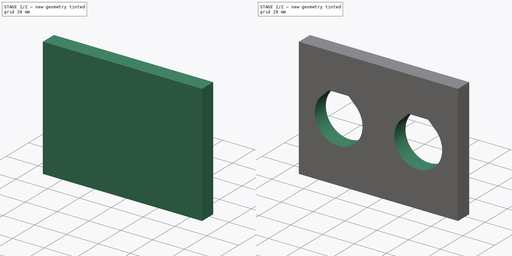
[diagram: build sequence overview — one tinted view per stage of 2, left to right]
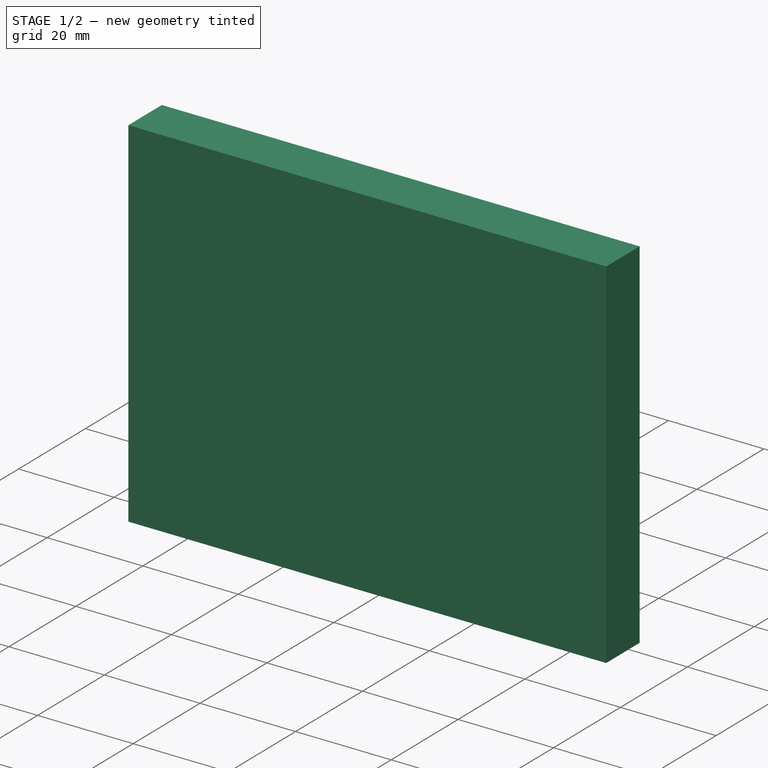
[diagram: stage 1 of 2 — iso view after this stage's code; geometry added in this stage tinted green]
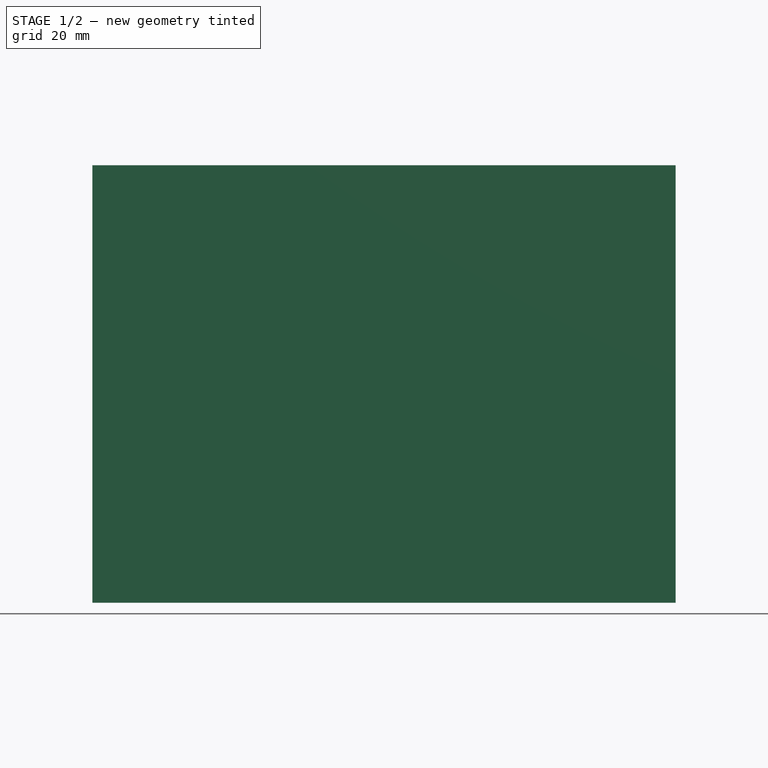
[diagram: stage 1 of 2 — front view after this stage's code; geometry added in this stage tinted green]
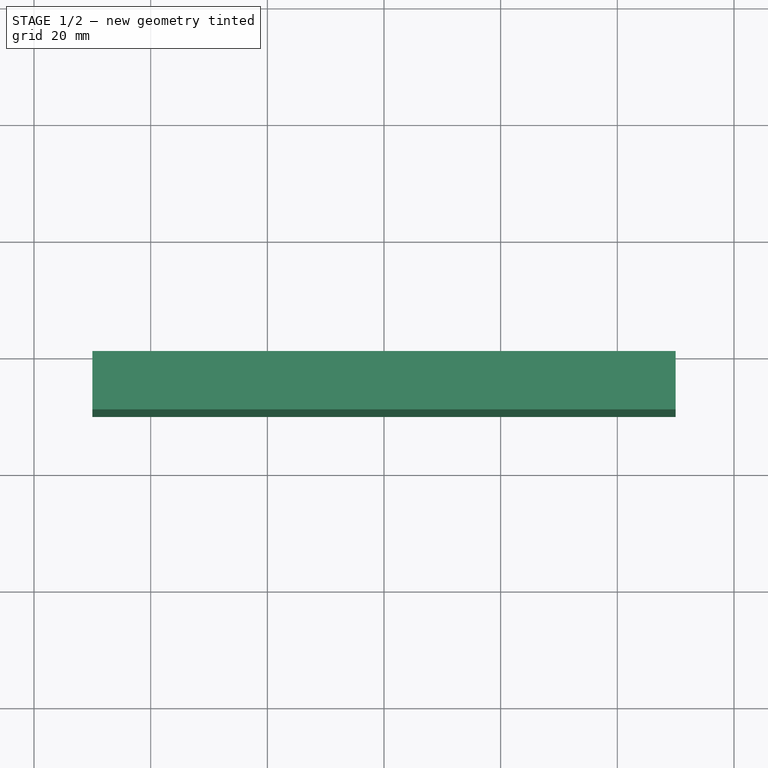
[diagram: stage 1 of 2 — top view after this stage's code; geometry added in this stage tinted green]
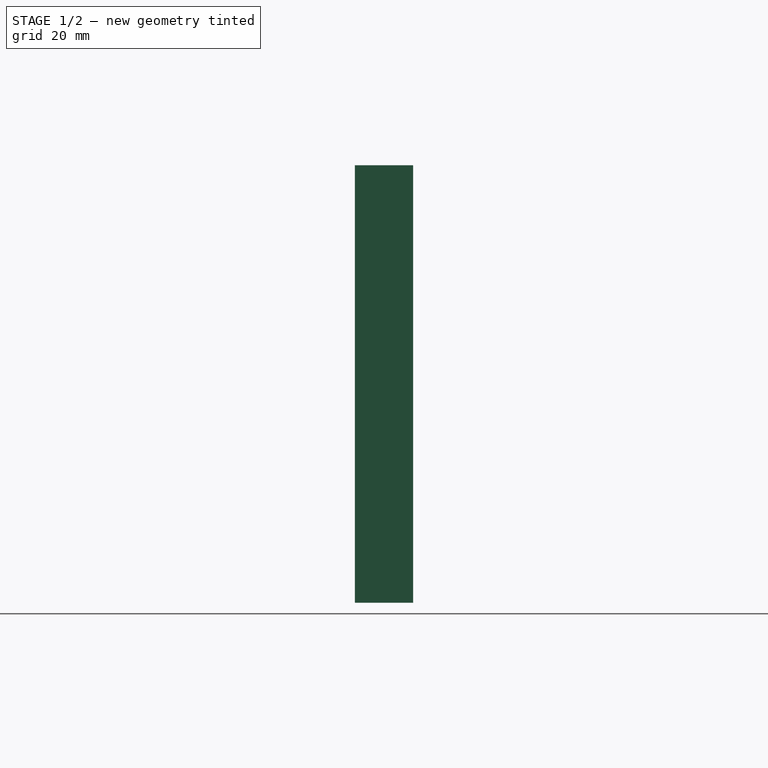
[diagram: stage 1 of 2 — right view after this stage's code; geometry added in this stage tinted green]
FCSTD DOCUMENT  (FreeCAD 0.16R6707 (Git))
Label: Taladros_RepRap
License: CreativeCommons Attribution-ShareAlike
LicenseURL: http://creativecommons.org/licenses/by-sa/4.0/
objects: Sketcher::SketchObject×2, PartDesign::Pad×1, PartDesign::Pocket×1
note: 6 computed .brp shape members not serialized (recipe doc carries the construction recipe); baked Part::Feature solids carry a one-line shape summary decoded from their .brp

FEATURE [Sketcher::SketchObject] Sketch
  Placement = pos=(0,0,0) rot=(-1,0,0;4.71239rad)
  sketch-geometry (4):
    g0: LineSegment StartX=-50 StartY=37.5 StartZ=0 EndX=50 EndY=37.5 EndZ=0
    g1: LineSegment StartX=50 StartY=37.5 StartZ=0 EndX=50 EndY=-37.5 EndZ=0
    g2: LineSegment StartX=50 StartY=-37.5 StartZ=0 EndX=-50 EndY=-37.5 EndZ=0
    g3: LineSegment StartX=-50 StartY=-37.5 StartZ=0 EndX=-50 EndY=37.5 EndZ=0
  constraints (12):
    c: Coincident(g0,g1)
    c: Coincident(g1,g2)
    c: Coincident(g2,g3)
    c: Coincident(g3,g0)
    c: Horizontal(g0)
    c: Horizontal(g2)
    c: Vertical(g1)
    c: Vertical(g3)
    c: DistanceX(g0,g0) = 100
    c: DistanceY(g1,g1) = 75
    c: Symmetric(g0,g2,g-1)
    c: Symmetric(g0,g0,g-2)
FEATURE [PartDesign::Pad] Pad  label="Base"
  Length = 10
  Length2 = 100
  Placement = pos=(0,0,0) rot=(-1,0,0;4.71239rad)
  Sketch = -> Sketch
  Type = 0
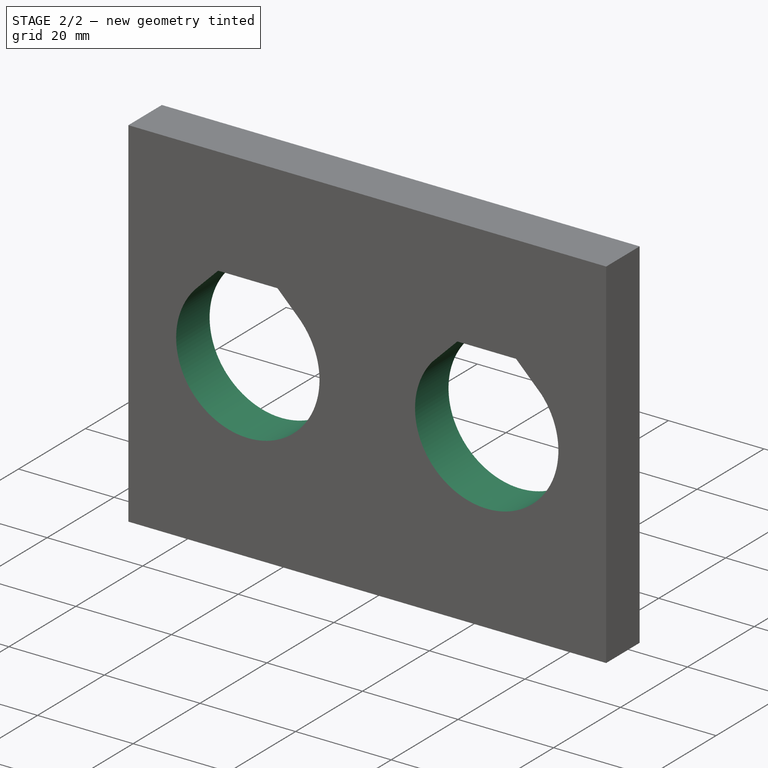
[diagram: stage 2 of 2 — iso view after this stage's code; geometry added in this stage tinted green]
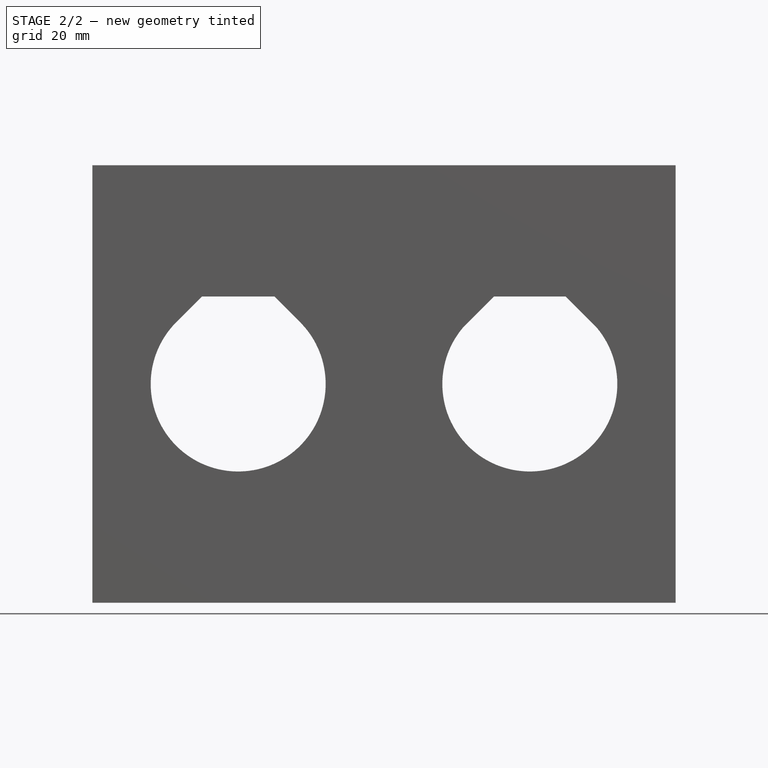
[diagram: stage 2 of 2 — front view after this stage's code; geometry added in this stage tinted green]
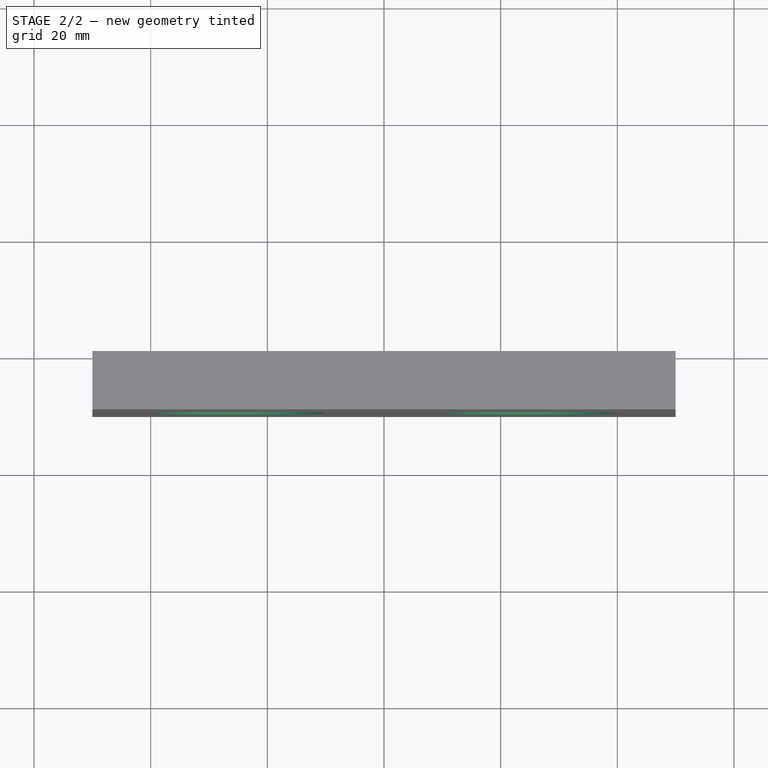
[diagram: stage 2 of 2 — top view after this stage's code; geometry added in this stage tinted green]
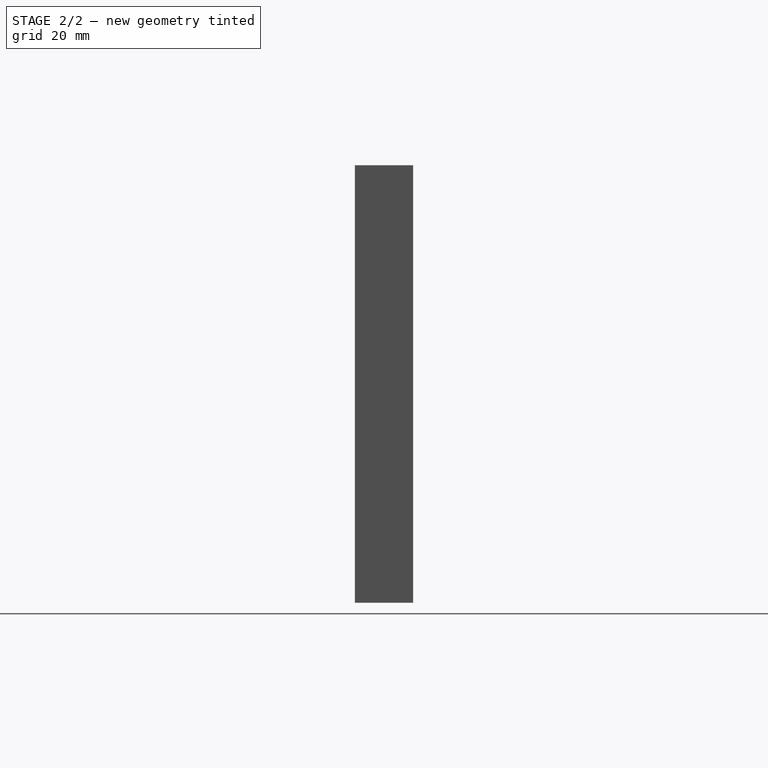
[diagram: stage 2 of 2 — right view after this stage's code; geometry added in this stage tinted green]
FEATURE [Sketcher::SketchObject] Sketch001  label="BCT_Taladros_RepRap"
  Placement = pos=(0,-10,0) rot=(1,0,0;1.5708rad)
  Support = -> Pad [Face6]
  sketch-geometry (10):
    g0: ArcOfCircle CenterX=-25 CenterY=0 CenterZ=0 NormalX=0 NormalY=0 NormalZ=1 Radius=15 StartAngle=2.3562 EndAngle=7.06858
    g1: ArcOfCircle CenterX=25 CenterY=0 CenterZ=0 NormalX=0 NormalY=0 NormalZ=1 Radius=15 StartAngle=2.43642 EndAngle=6.98624
    g2: LineSegment StartX=-35.6066 StartY=10.6066 StartZ=0 EndX=-31.2132 EndY=15 EndZ=0
    g3: LineSegment StartX=-18.7868 StartY=15 StartZ=0 EndX=-14.3934 EndY=10.6066 EndZ=0
    g4: LineSegment StartX=13.5775 StartY=9.72252 StartZ=0 EndX=18.855 EndY=15 EndZ=0
    g5: LineSegment StartX=31.1413 StartY=15 StartZ=0 EndX=36.4431 EndY=9.69827 EndZ=0
    g6: ArcOfCircle [constr] CenterX=-25 CenterY=0 CenterZ=0 NormalX=0 NormalY=0 NormalZ=1 Radius=15 StartAngle=0.785397 EndAngle=2.3562
    g7: LineSegment StartX=-31.2132 StartY=15 StartZ=0 EndX=-18.7868 EndY=15 EndZ=0
    g8: ArcOfCircle [constr] CenterX=25 CenterY=0 CenterZ=0 NormalX=0 NormalY=0 NormalZ=1 Radius=15 StartAngle=0.703055 EndAngle=2.43642
    g9: LineSegment StartX=18.855 StartY=15 StartZ=0 EndX=31.1413 EndY=15 EndZ=0
  constraints (32):
    c: PointOnObject(g1,g-1)
    c: PointOnObject(g0,g-1)
    c: Symmetric(g0,g1,g-2)
    c: Tangent(g3,g0)
    c: Tangent(g2,g0)
    c: Coincident(g0,g2)
    c: Coincident(g0,g3)
    c: Coincident(g1,g4)
    c: Coincident(g1,g5)
    c: Coincident(g6,g0)
    c: Coincident(g6,g0)
    c: Coincident(g0,g6)
    c: Horizontal(g7)
    c: Tangent(g7,g6)
    c: Coincident(g7,g3)
    c: Coincident(g2,g7)
    c: Coincident(g8,g4)
    c: Coincident(g8,g5)
    c: Parallel(g9,g-1)
    c: Tangent(g9,g8)
    c: Coincident(g9,g5)
    c: Coincident(g9,g4)
    c: Coincident(g1,g5)
    c: Coincident(g1,g4)
    c: Coincident(g1,g8)
    c: Equal(g0,g1)
    c: Radius(g0) = 15
    c: Angle(g2,g-2) = 0.785398
    c: Angle(g2,g3) = 1.5708
    c: DistanceX(g0,g-1) = 25
    c: Angle(g4,g5) = 1.5708
    c: Angle(g-2,g5) = 0.785398
FEATURE [PartDesign::Pocket] Pocket  label="Base_Taladrada"
  Length = 5
  Placement = pos=(0,0,0) rot=(-1,0,0;4.71239rad)
  Sketch = -> Sketch001
  Type = 1
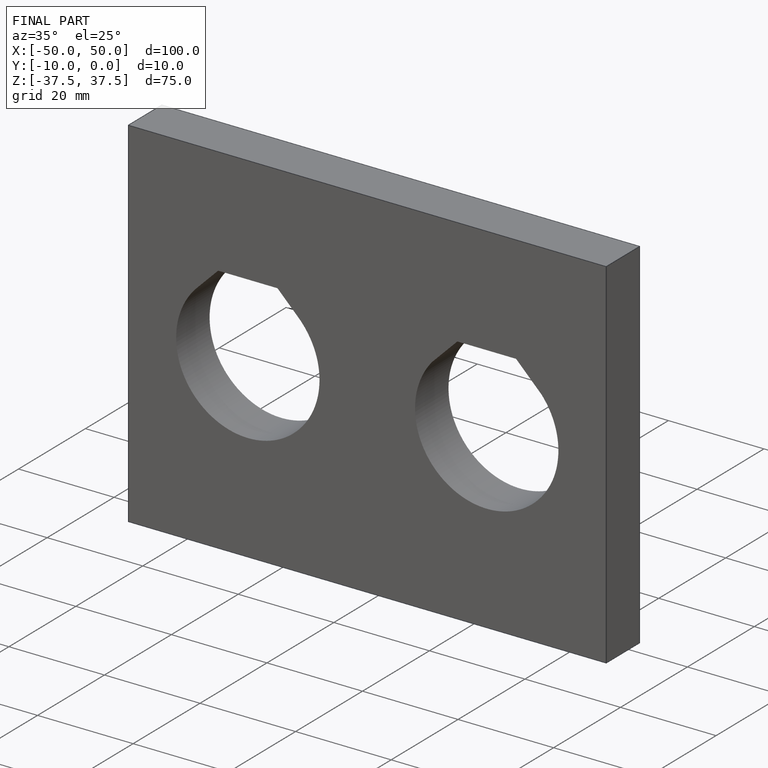
[diagram: finished part — iso view with bounding-box wireframe]
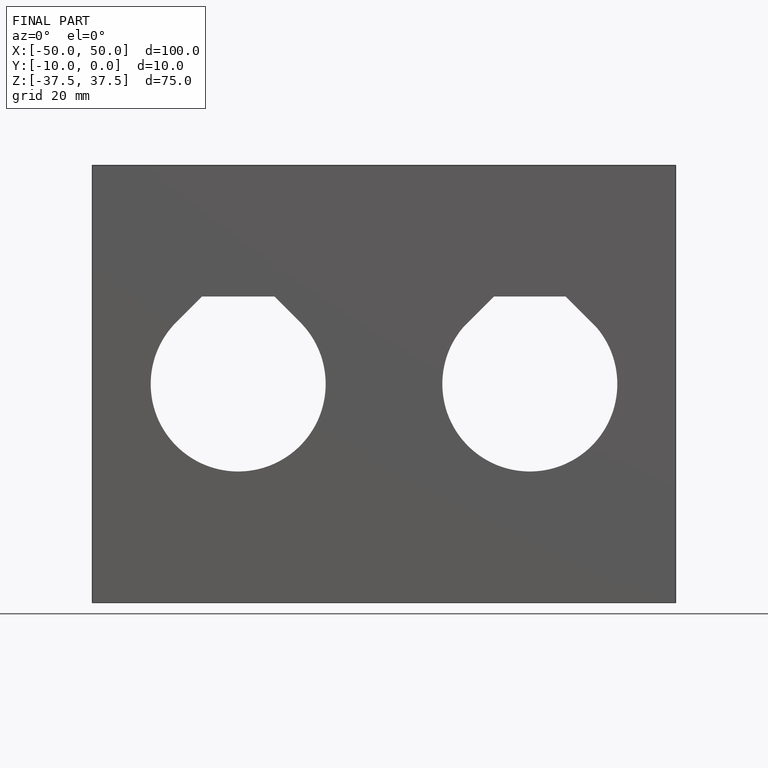
[diagram: finished part — front view with bounding-box wireframe]
